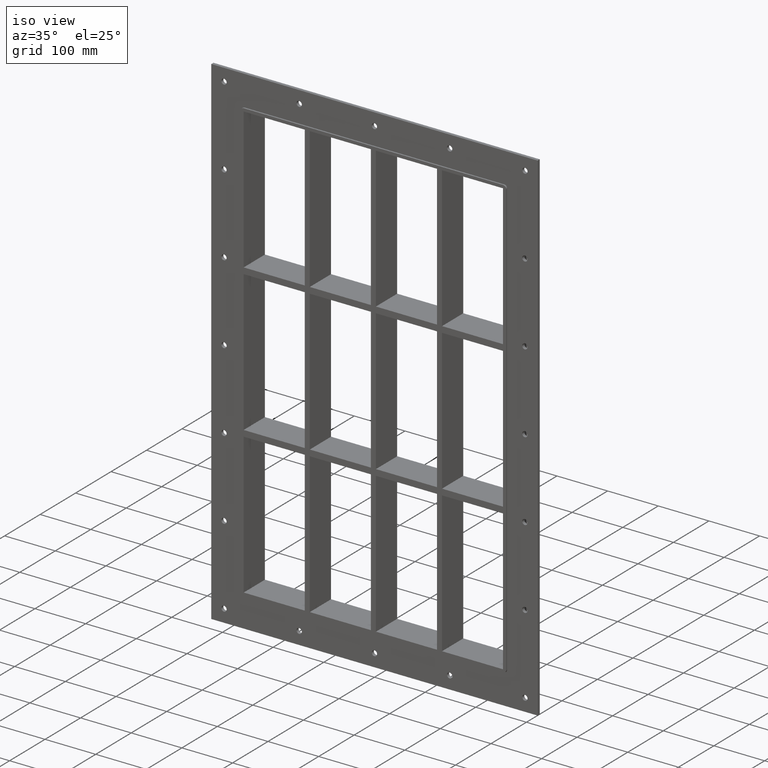
[diagram: clean part render]
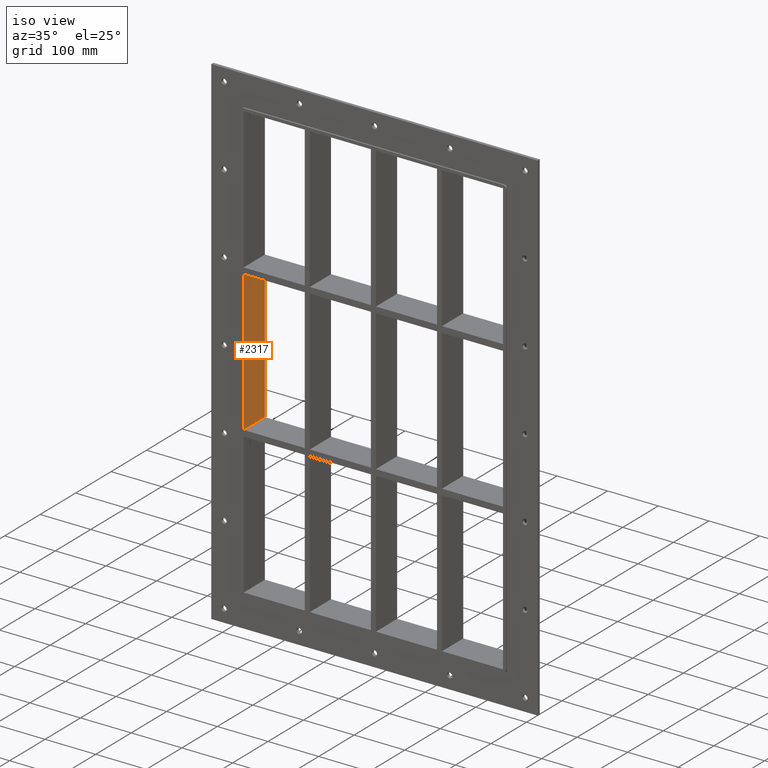
[diagram: same view with one face highlighted and labeled with its STEP entity id]
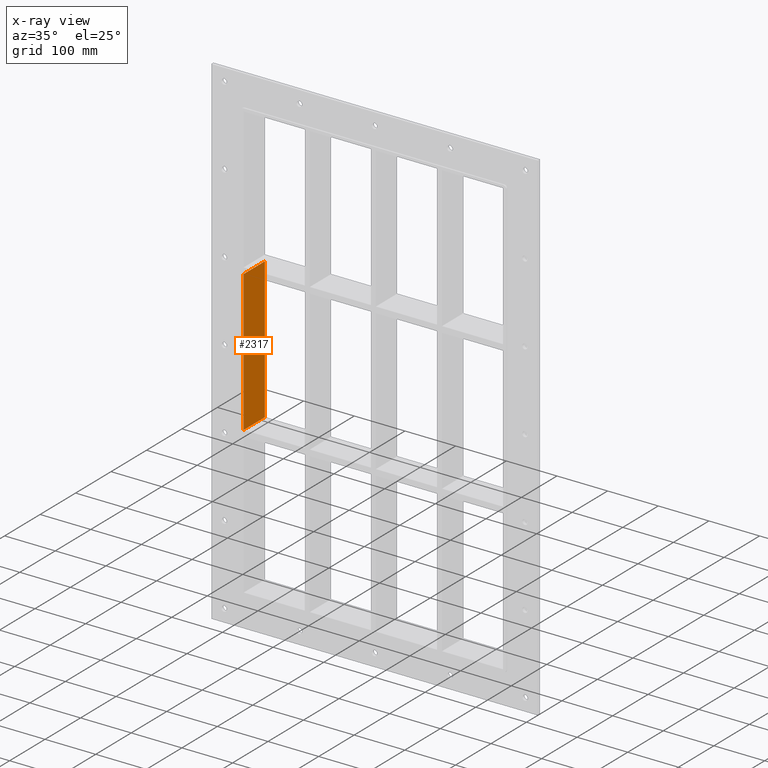
[diagram: x-ray of the same camera — body ghosted, the highlighted face saturated]
A machine part, iso view. The second image highlights one B-rep face of the part: STEP entity #2317.
The next image is the same camera in x-ray: the body ghosted, the highlighted face saturated — about 0% of this face is hidden behind the body in this view.
In plain terms, the highlighted planar face has unit normal (-1, 0, 0).
Its self-contained STEP definition (entity closure, byte-faithful):
#643=CARTESIAN_POINT('',(-256.00000000000045,-3.0,138.99999999998983));
#644=VERTEX_POINT('',#643);
#651=CARTESIAN_POINT('',(-256.00000000000045,57.0,138.99999999998983));
#652=VERTEX_POINT('',#651);
#653=CARTESIAN_POINT('',(-256.0,57.000000000000007,138.99999999998983));
#654=DIRECTION('',(0.0,-1.0,0.0));
#655=VECTOR('',#654,60.000000000000007);
#656=LINE('',#653,#655);
#657=EDGE_CURVE('',#652,#644,#656,.T.);
#1333=CARTESIAN_POINT('',(-256.00000000000045,57.0,-139.00000000000006));
#1334=VERTEX_POINT('',#1333);
#1335=CARTESIAN_POINT('',(-256.0,57.0,138.99999999998985));
#1336=DIRECTION('',(0.0,0.0,-1.0));
#1337=VECTOR('',#1336,277.99999999998988);
#1338=LINE('',#1335,#1337);
#1339=EDGE_CURVE('',#652,#1334,#1338,.T.);
#2035=CARTESIAN_POINT('',(-256.00000000000045,-3.0,-139.00000000000006));
#2036=VERTEX_POINT('',#2035);
#2043=CARTESIAN_POINT('',(-256.0,-3.0,-139.00000000000006));
#2044=DIRECTION('',(0.0,0.0,1.0));
#2045=VECTOR('',#2044,277.99999999998988);
#2046=LINE('',#2043,#2045);
#2047=EDGE_CURVE('',#2036,#644,#2046,.T.);
#2296=CARTESIAN_POINT('',(-256.0,-3.0,-139.00000000000006));
#2297=DIRECTION('',(0.0,1.0,0.0));
#2298=VECTOR('',#2297,60.000000000000007);
#2299=LINE('',#2296,#2298);
#2300=EDGE_CURVE('',#2036,#1334,#2299,.T.);
#2306=CARTESIAN_POINT('',(-256.0,0.0,-429.00000000000006));
#2307=DIRECTION('',(-1.0,0.0,0.0));
#2308=DIRECTION('',(0.0,0.0,1.0));
#2309=AXIS2_PLACEMENT_3D('',#2306,#2307,#2308);
#2310=PLANE('',#2309);
#2311=ORIENTED_EDGE('',*,*,#657,.T.);
#2312=ORIENTED_EDGE('',*,*,#2047,.F.);
#2313=ORIENTED_EDGE('',*,*,#2300,.T.);
#2314=ORIENTED_EDGE('',*,*,#1339,.F.);
#2315=EDGE_LOOP('',(#2311,#2312,#2313,#2314));
#2316=FACE_OUTER_BOUND('',#2315,.T.);
#2317=ADVANCED_FACE('',(#2316),#2310,.F.);